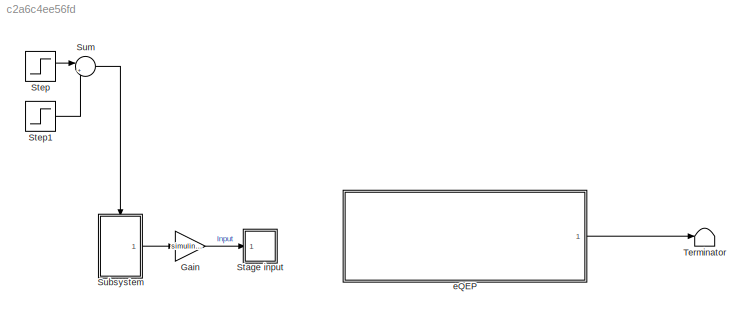
MODEL slx_c2a6c4ee56fd
KIND model
CONFIG AbsTol = auto
CONFIG EnableMultiTasking = on
CONFIG FixedStep = auto
CONFIG InitFcn = clear\naddpath('./../1D/')\n[Beam, sBeam, modelSettings,...\n        simulationSettings, plotSettings, simulinkSettings,...\n        LO,KF,AKF,DKF,GDF,...\n        Cd] = configure(1);
CONFIG MaxStep = auto
CONFIG MinStep = auto
CONFIG RelTol = 1e-3
CONFIG SampleTimeConstraint = Unconstrained
CONFIG SolverName = FixedStepDiscrete
CONFIG StartTime = 0.0
CONFIG StopTime = Inf
BLOCK [Gain] Gain
  Gain = simulinkSettings.inputGain
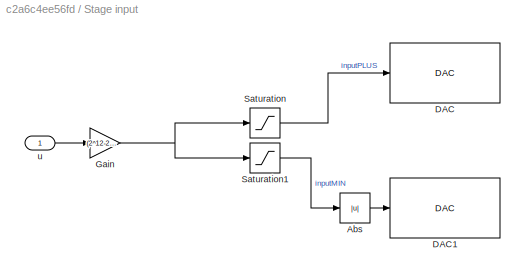
BLOCK [SubSystem] Stage input
  Ports = [1]
  RequestExecContextInheritance = off
BLOCK [Abs] Stage input/Abs
  SaturateOnIntegerOverflow = off
BLOCK [Reference] Stage input/DAC  REF=c2837xDlib/DAC
  Ports = [1]
  SourceBlock = c2837xDlib/DAC
  SourceProductBaseCode = TIC2000
  SourceType = codertarget.tic2000.blocks.DACWrite
BLOCK [Reference] Stage input/DAC1  REF=c2837xDlib/DAC
  Ports = [1]
  SourceBlock = c2837xDlib/DAC
  SourceProductBaseCode = TIC2000
  SourceType = codertarget.tic2000.blocks.DACWrite
BLOCK [Gain] Stage input/Gain
  Gain = (2^12-2)/100
BLOCK [Saturate] Stage input/Saturation
  LinearizeAsGain = off
  LowerLimit = 0
  UpperLimit = 4094
BLOCK [Saturate] Stage input/Saturation1
  LowerLimit = -4095
  UpperLimit = 0
BLOCK [Inport] Stage input/u
BLOCK [Step] Step
  SampleTime = 0
  Time = 20
BLOCK [Step] Step1
  After = -1
  SampleTime = 0
  Time = simulinkSettings.chirpTargetTime+20
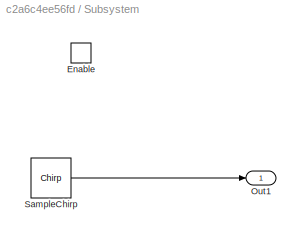
BLOCK [SubSystem] Subsystem
  Ports = [0, 1, 1]
  RequestExecContextInheritance = off
BLOCK [EnablePort] Subsystem/Enable
  Ports = []
  StatesWhenEnabling = reset
BLOCK [Outport] Subsystem/Out1
  InitialOutput = [0]
  OutputWhenDisabled = reset
BLOCK [Reference] Subsystem/SampleChirp  REF=dspsrcs4/Chirp
  Ports = [0, 1]
  SourceBlock = dspsrcs4/Chirp
  SourceProductBaseCode = DS
  SourceType = Chirp
BLOCK [Sum] Sum
  Inputs = |++
  Ports = [2, 1]
BLOCK [Terminator] Terminator
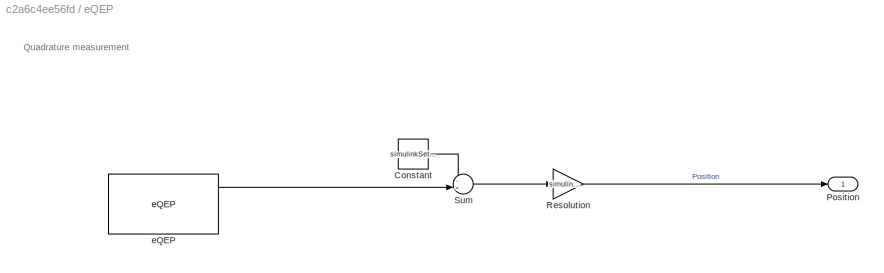
BLOCK [SubSystem] eQEP
  Ports = [0, 1]
  RequestExecContextInheritance = off
BLOCK [Constant] eQEP/Constant
  Value = simulinkSettings.maxEncoderPosition/2
BLOCK [Outport] eQEP/Position
BLOCK [Gain] eQEP/Resolution
  Gain = simulinkSettings.laserResolution
BLOCK [Sum] eQEP/Sum
  Inputs = -+|
  Ports = [2, 1]
BLOCK [Reference] eQEP/eQEP  REF=c280xlib/eQEP
  Ports = [0, 3]
  SourceBlock = c280xlib/eQEP
  SourceProductBaseCode = TIC2000
  SourceType = C28x eQEP
ANNOTATION eQEP: Quadrature measurement
LINE Gain:1 -> Stage input:1
LINE Stage input/Abs:1 -> Stage input/DAC1:1
NET Stage input/Gain:1 -> Stage input/Saturation1:1, Stage input/Saturation:1
LINE Stage input/Saturation1:1 -> Stage input/Abs:1
LINE Stage input/Saturation:1 -> Stage input/DAC:1
LINE Stage input/u:1 -> Stage input/Gain:1
LINE Step1:1 -> Sum:2
LINE Step:1 -> Sum:1
LINE Subsystem/SampleChirp:1 -> Subsystem/Out1:1
LINE Subsystem:1 -> Gain:1
LINE Sum:1 -> Subsystem:enable
LINE eQEP/Constant:1 -> eQEP/Sum:1
LINE eQEP/Resolution:1 -> eQEP/Position:1
LINE eQEP/Sum:1 -> eQEP/Resolution:1
LINE eQEP/eQEP:1 -> eQEP/Sum:2
LINE eQEP:1 -> Terminator:1
note: NET lines group one-source signal fan-out (src -> all destinations, sorted); 1:1 wires keep LINE
